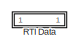
[diagram: root canvas - part 1/2, top left region]
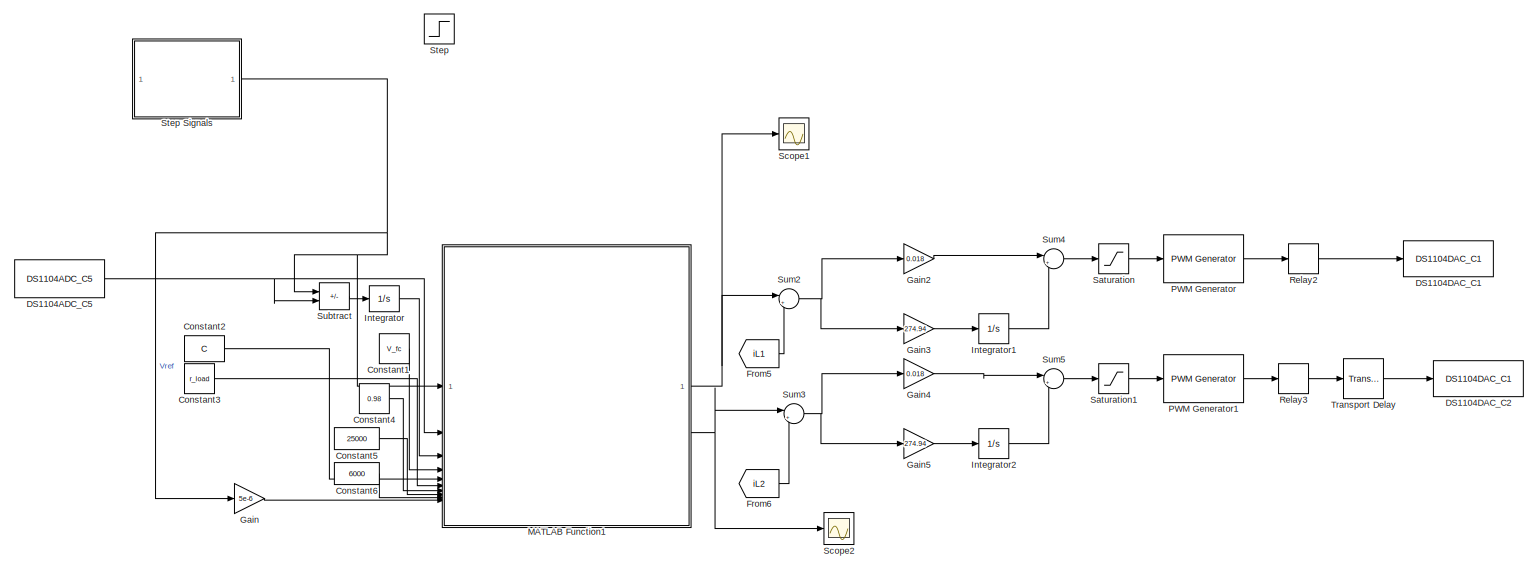
[diagram: root canvas - part 2/2, full width, middle band]
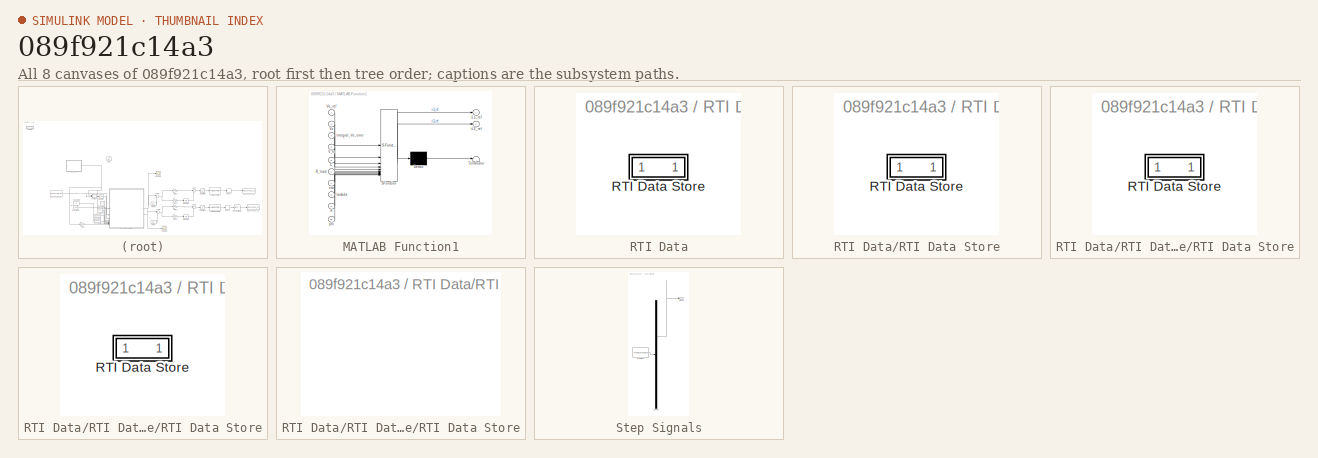
[diagram: thumbnail index - all 8 canvases of the model, root first then tree order]
MODEL slx_089f921c14a3
KIND model
CONFIG AbsTol = auto
CONFIG EnableMultiTasking = off
CONFIG FixedStep = 0.0001
CONFIG InitFcn = , if any(exist('rtifpga_mdlclblib', 'file') ~= 0), rtifpga_mdlclblib('Init', bdroot); end,\n
CONFIG MaxStep = auto
CONFIG MinStep = auto
CONFIG PostLoadFcn = , if any(exist('dsrtsu_mdlpostloadfcn', 'file') ~= 0), dsrtsu_mdlpostloadfcn('Execute', bdroot); end, \n
CONFIG RelTol = 1e-3
CONFIG SampleTimeConstraint = Unconstrained
CONFIG SolverName = ode1
CONFIG StartTime = 0.0
CONFIG StopTime = Inf
BLOCK [Constant] Constant1
  Value = V_fc
BLOCK [Constant] Constant2
  Value = C
BLOCK [Constant] Constant3
  Value = r_load
BLOCK [Constant] Constant4
  Value = 0.98
BLOCK [Constant] Constant5
  Value = 25000
BLOCK [Constant] Constant6
  Value = 6000
BLOCK [Reference] DS1104ADC_C5  REF=rtilib1104/DS1104 MASTER PPC/DS1104ADC_C5
  SourceBlock = rtilib1104/DS1104 MASTER PPC/DS1104ADC_C5
  SourceProductName = dSPACE RTI1104
  SourceType = RTI
BLOCK [Reference] DS1104DAC_C1  REF=rtilib1104/DS1104 MASTER PPC/DS1104DAC_C1
  SourceBlock = rtilib1104/DS1104 MASTER PPC/DS1104DAC_C1
  SourceProductName = dSPACE RTI1104
  SourceType = RTI
BLOCK [Reference] DS1104DAC_C2  REF=rtilib1104/DS1104 MASTER PPC/DS1104DAC_C1
  SourceBlock = rtilib1104/DS1104 MASTER PPC/DS1104DAC_C1
  SourceProductName = dSPACE RTI1104
  SourceType = RTI
BLOCK [From] From5
  GotoTag = iL1
  TagVisibility = global
BLOCK [From] From6
  GotoTag = iL2
  TagVisibility = global
BLOCK [Gain] Gain
  Gain = 5e-6
BLOCK [Gain] Gain2
  Gain = 0.018
BLOCK [Gain] Gain3
  Gain = 274.94
BLOCK [Gain] Gain4
  Gain = 0.018
BLOCK [Gain] Gain5
  Gain = 274.94
BLOCK [Integrator] Integrator
BLOCK [Integrator] Integrator1
BLOCK [Integrator] Integrator2
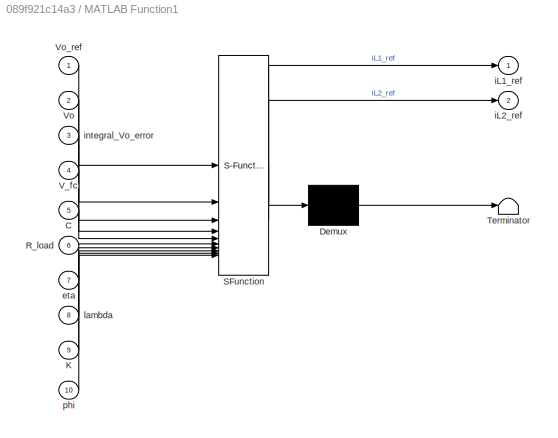
BLOCK [SubSystem] MATLAB Function1
  ErrorFcn = Stateflow.Translate.translate
  PermitHierarchicalResolution = ExplicitOnly
  SFBlockType = MATLAB Function
  TreatAsAtomicUnit = on
BLOCK [Demux] MATLAB Function1/ Demux 
  Outputs = 1
BLOCK [S-Function] MATLAB Function1/ SFunction 
  EnableBusSupport = on
  FunctionName = sf_sfun
  PortCounts = [10 3]
  SFcnIsStateOwnerBlock = off
  SFunctionDeploymentMode = off
  Tag = Stateflow S-Function 1
BLOCK [Terminator] MATLAB Function1/ Terminator 
BLOCK [Inport] MATLAB Function1/C
  Port = 5
BLOCK [Inport] MATLAB Function1/K
  Port = 9
BLOCK [Inport] MATLAB Function1/R_load
  Port = 6
BLOCK [Inport] MATLAB Function1/V_fc
  Port = 4
BLOCK [Inport] MATLAB Function1/Vo
  Port = 2
BLOCK [Inport] MATLAB Function1/Vo_ref
BLOCK [Inport] MATLAB Function1/eta
  Port = 7
BLOCK [Outport] MATLAB Function1/iL1_ref
BLOCK [Outport] MATLAB Function1/iL2_ref
  Port = 2
BLOCK [Inport] MATLAB Function1/integral_Vo_error
  Port = 3
BLOCK [Inport] MATLAB Function1/lambda
  Port = 8
BLOCK [Inport] MATLAB Function1/phi
  Port = 10
BLOCK [Reference] PWM Generator  REF=eePwmGenerator/PWM Generator
  SourceBlock = eePwmGenerator/PWM Generator
  SourceType = PWM Generator
BLOCK [Reference] PWM Generator1  REF=eePwmGenerator/PWM Generator
  SourceBlock = eePwmGenerator/PWM Generator
  SourceType = PWM Generator
BLOCK [SubSystem] RTI Data
  CopyFcn = if exist('rtidc'), try,  rtidc('DataHostBlockClbCopy', gcbh); catch, disp(['Warning: ''CopyFcn'' for RTI Data block failed: ' lasterr]); end, end,
  DeleteFcn = if exist('rtidc'), try,  rtidc('DataHostBlockClbDelete', gcbh); catch, disp(['Warning: ''DeleteFcn'' for RTI Data block failed: ' lasterr]); end, end,
  LoadFcn = if exist('rtidc'), try,  rtidc('DataHostBlockClbLoad', gcbh); catch, disp(['Warning: ''LoadFcn'' for RTI Data block failed: ' lasterr]); end, end,
  ModelCloseFcn = if exist('rtidc'), try,  rtidc('DataHostBlockClbModelClose', gcbh); catch, disp(['Warning: ''ModelCloseFcn'' for RTI Data block failed: ' lasterr]); end, end,
  NameChangeFcn = if exist('rtidc'), try,  rtidc('DataHostBlockClbNameChange', gcbh); catch, disp(['Warning: ''NameChangeFcn'' for RTI Data block failed: ' lasterr]); end, end,
  PostSaveFcn = if exist('rtidc'), try,  rtidc('DataHostBlockClbPostSave', gcbh); catch, disp(['Warning: ''PostSaveFcn'' for RTI Data block failed: ' lasterr]); end, end,
  PreSaveFcn = if exist('rtidc'), try,  rtidc('DataHostBlockClbPreSave', gcbh); catch, disp(['Warning: ''PreSaveFcn'' for RTI Data block failed: ' lasterr]); end, end,
  Tag = struct('RTIDataServer',struct('RTIDataServerVs','2','RTIModelDescription','struct(''main'',''SMCPI'',''sub'',''SMCPI'',''isMp'',0)'))
BLOCK [SubSystem] RTI Data/RTI Data Store
  Tag = struct('private',struct('version',struct('dsVer',uint32(2)),'access',struct('modified',['03-Jul-2025 12:55:27'],'type','Model','isPerm',1)))
BLOCK [SubSystem] RTI Data/RTI Data Store/RTI Data Store
BLOCK [SubSystem] RTI Data/RTI Data Store/RTI Data Store/RTI Data Store
BLOCK [SubSystem] RTI Data/RTI Data Store/RTI Data Store/RTI Data Store/RTI Data Store
BLOCK [Relay] Relay2
BLOCK [Relay] Relay3
BLOCK [Saturate] Saturation
  LowerLimit = 0.1
  UpperLimit = 0.97
BLOCK [Saturate] Saturation1
  LowerLimit = 0.1
  UpperLimit = 0.97
BLOCK [Scope] Scope1
  Floating = off
  NumInputPorts = 1
  ScopeSpecificationString = Simulink.scopes.TimeScopeBlockCfg('CurrentConfiguration', extmgr.ConfigurationSet(extmgr.Configuration('Core','General UI',true),extmgr.Configuration('Core','Source UI',true),extmgr.Configuration('Sources','WiredSimulink',true,'DataLoggingVariableName','ScopeData2'),extmgr.Configuration('Visuals','Time Domain',true,'SerializedDisplays',{struct('MinYLimReal','8.9447','MaxYLimReal','27.82937','YLabe...<+1481ch>
BLOCK [Scope] Scope2
  Floating = off
  NumInputPorts = 1
  ScopeSpecificationString = Simulink.scopes.TimeScopeBlockCfg('CurrentConfiguration', extmgr.ConfigurationSet(extmgr.Configuration('Core','General UI',true),extmgr.Configuration('Core','Source UI',true),extmgr.Configuration('Sources','WiredSimulink',true),extmgr.Configuration('Visuals','Time Domain',true,'SerializedDisplays',{struct('MinYLimReal','10.37704','MaxYLimReal','19.01536','YLabelReal','','MinYLimMag','10.37704','Ma...<+1350ch>
BLOCK [Step] Step
  After = 40
  Before = 48
  Commented = on
  SampleTime = 0
  Time = 0.2
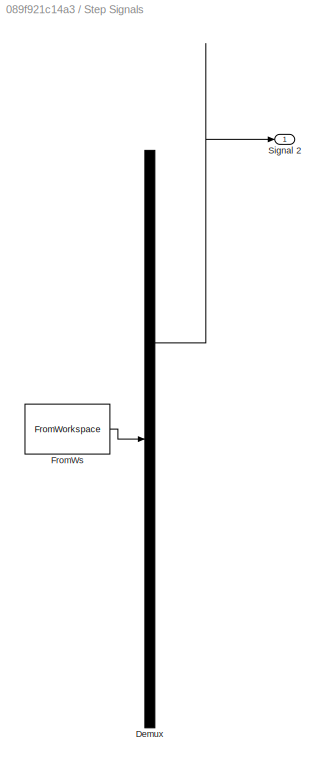
BLOCK [SubSystem] Step Signals
  ClipboardFcn = sigbuilder_block('clipboard');
  CloseFcn = sigbuilder_block('close');
  ContinueFcn = sigbuilder_block('continue');
  CopyFcn = sigbuilder_block('copy');
  DeleteFcn = sigbuilder_block('delete');
  LoadFcn = sigbuilder_block('load');
  MaskHideContents = on
  ModelCloseFcn = sigbuilder_block('modelClose');
  NameChangeFcn = sigbuilder_block('namechange');
  OpenFcn = sigbuilder_block('open',[6 36 1428 675.75 ]);
  PauseFcn = sigbuilder_block('pause');
  PreSaveFcn = sigbuilder_block('preSave');
  StartFcn = sigbuilder_block('start');
  StopFcn = sigbuilder_block('stop');
  Tag = STV Subsys
BLOCK [Demux] Step Signals/Demux
  DisplayOption = none
  Outputs = 1
  Tag = STV Demux
BLOCK [FromWorkspace] Step Signals/FromWs
  Tag = STV FromWs
  VariableName = tuvar
BLOCK [Outport] Step Signals/Signal 2
  Tag = STV Outport
BLOCK [Sum] Subtract
  IconShape = rectangular
  Inputs = +-
BLOCK [Sum] Sum2
  Inputs = |+-
BLOCK [Sum] Sum3
  Inputs = |+-
BLOCK [Sum] Sum4
  Inputs = |++
BLOCK [Sum] Sum5
  Inputs = |++
BLOCK [TransportDelay] Transport Delay
  DelayTime = 1e-5
LINE Constant1:1 -> MATLAB Function1:4
LINE Constant2:1 -> MATLAB Function1:5
LINE Constant3:1 -> MATLAB Function1:6
LINE Constant4:1 -> MATLAB Function1:7
LINE Constant5:1 -> MATLAB Function1:8
LINE Constant6:1 -> MATLAB Function1:9
NET DS1104ADC_C5:1 -> MATLAB Function1:2, Subtract:2
LINE From5:1 -> Sum2:2
LINE From6:1 -> Sum3:2
LINE Gain2:1 -> Sum4:1
LINE Gain3:1 -> Integrator1:1
LINE Gain4:1 -> Sum5:1
LINE Gain5:1 -> Integrator2:1
LINE Gain:1 -> MATLAB Function1:10
LINE Integrator1:1 -> Sum4:2
LINE Integrator2:1 -> Sum5:2
LINE Integrator:1 -> MATLAB Function1:3
NET MATLAB Function1:1 -> Scope1:1, Sum2:1
NET MATLAB Function1:2 -> Scope2:1, Sum3:1
LINE PWM Generator1:1 -> Relay3:1
LINE PWM Generator:1 -> Relay2:1
LINE Relay2:1 -> DS1104DAC_C1:1
LINE Relay3:1 -> Transport Delay:1
LINE Saturation1:1 -> PWM Generator1:1
LINE Saturation:1 -> PWM Generator:1
NET Step Signals:1 -> Gain:1, MATLAB Function1:1, Subtract:1
LINE Subtract:1 -> Integrator:1
NET Sum2:1 -> Gain2:1, Gain3:1
NET Sum3:1 -> Gain4:1, Gain5:1
LINE Sum4:1 -> Saturation:1
LINE Sum5:1 -> Saturation1:1
LINE Transport Delay:1 -> DS1104DAC_C2:1
note: NET lines group one-source signal fan-out (src -> all destinations, sorted); 1:1 wires keep LINE
CHART MATLAB Function1 states=1 transitions=1
  STATE_LABEL 'eML_blk_kernel()'
  STATE_LABEL 'SCRIPT:\nfunction [iL1_ref, iL2_ref] = Outer_SMC(Vo_ref, Vo, integral_Vo_error, V_fc, C, R_load, eta, lambda, K, phi)\n    %% System Parameters (Optimized for ±0.5V Error)\n%     V_fc = 14.4;          % Input voltage [V] (measured under load)\n%     C = 100e-6;          % Output capacitance [F] \n%     R_load = 5;          % Load resistance [Ω] (48V/500W = 4.608Ω, adjust if needed)\n%     eta = 0.97;   ...<+1170ch>'
CHART  states=0 transitions=0
